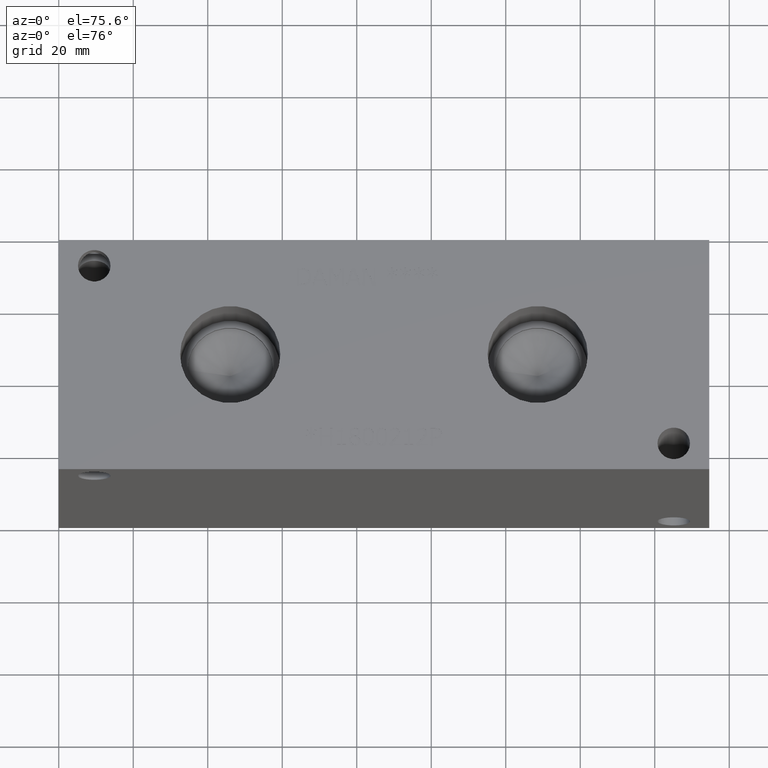
[diagram: clean part render]
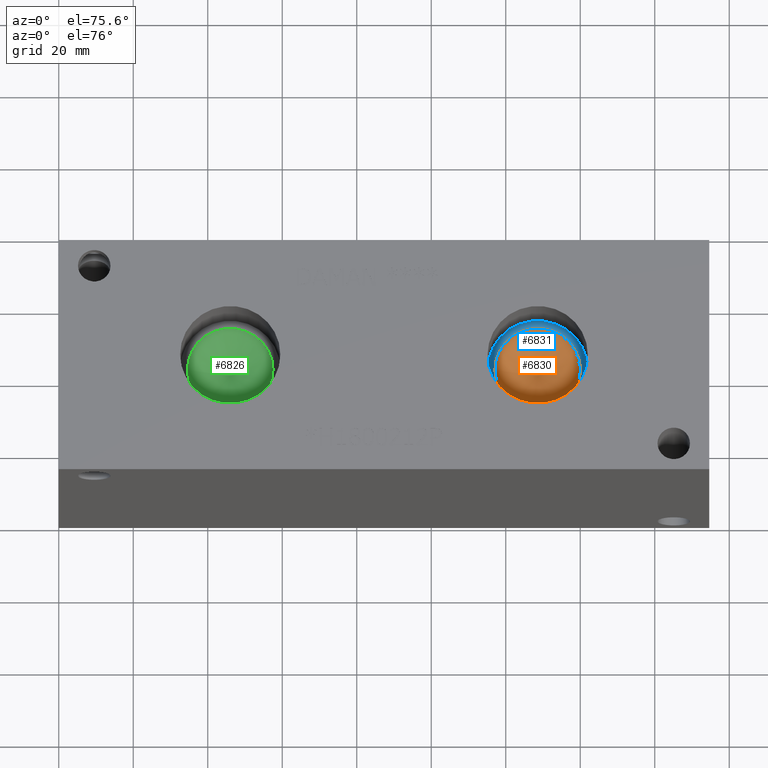
[diagram: same view with three faces highlighted in distinct colors, each labeled with its STEP entity id]
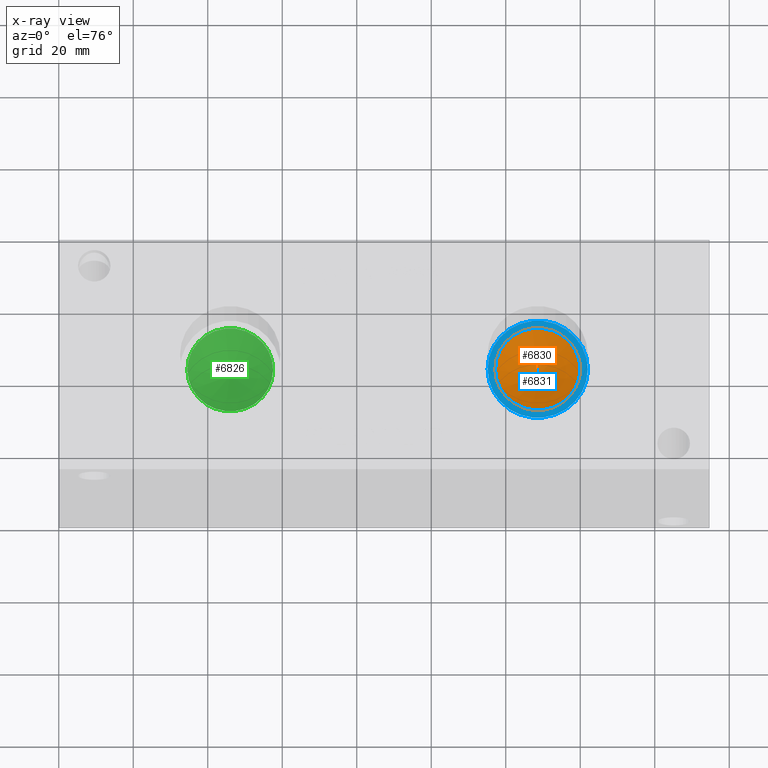
[diagram: x-ray of the same camera — body ghosted, the three highlighted faces saturated]
A machine part, auxiliary view with three faces highlighted in distinct colors.
The next image is the same camera in x-ray (body ghosted, the three faces saturated) — at least one of them is partly hidden behind the body in this view.
Their STEP definitions:

[orange] entity #6830 — the highlighted conical surface has half-angle 60 deg.
#45=CONICAL_SURFACE('',#7147,5.7531,1.0471975511966);
#83=CIRCLE('',#7148,11.5062);
#84=CIRCLE('',#7149,11.5062);
#708=FACE_OUTER_BOUND('',#1085,.T.);
#1085=EDGE_LOOP('',(#6031,#6032,#6033,#6034));
#1805=LINE('',#11446,#2511);
#2511=VECTOR('',#8449,5.7531);
#3296=VERTEX_POINT('',#11442);
#3297=VERTEX_POINT('',#11443);
#3298=VERTEX_POINT('',#11445);
#4220=EDGE_CURVE('',#3296,#3297,#83,.T.);
#4221=EDGE_CURVE('',#3297,#3298,#1805,.T.);
#4222=EDGE_CURVE('',#3297,#3296,#84,.T.);
#6031=ORIENTED_EDGE('',*,*,#4220,.T.);
#6032=ORIENTED_EDGE('',*,*,#4221,.T.);
#6033=ORIENTED_EDGE('',*,*,#4221,.F.);
#6034=ORIENTED_EDGE('',*,*,#4222,.T.);
#6830=ADVANCED_FACE('',(#708),#45,.F.);
#7147=AXIS2_PLACEMENT_3D('',#11441,#8445,#8446);
#7148=AXIS2_PLACEMENT_3D('',#11444,#8447,#8448);
#7149=AXIS2_PLACEMENT_3D('',#11447,#8450,#8451);
#8445=DIRECTION('center_axis',(0.,0.,1.));
#8446=DIRECTION('ref_axis',(1.,0.,0.));
#8447=DIRECTION('center_axis',(0.,0.,1.));
#8448=DIRECTION('ref_axis',(1.,0.,0.));
#8449=DIRECTION('',(0.866025403784439,1.06057523872491E-16,-0.5));
#8450=DIRECTION('center_axis',(0.,0.,1.));
#8451=DIRECTION('ref_axis',(1.,0.,0.));
#11441=CARTESIAN_POINT('Origin',(128.5748,31.75,43.6645361663252));
#11442=CARTESIAN_POINT('',(140.081,31.75,46.98609));
#11443=CARTESIAN_POINT('',(117.0686,31.75,46.98609));
#11444=CARTESIAN_POINT('Origin',(128.5748,31.75,46.98609));
#11445=CARTESIAN_POINT('',(128.5748,31.75,40.3429823326503));
#11446=CARTESIAN_POINT('',(122.8217,31.75,43.6645361663252));
#11447=CARTESIAN_POINT('Origin',(128.5748,31.75,46.98609));

[blue] entity #6831 — the highlighted planar face has unit normal (0, 0, 1).
#85=CIRCLE('',#7151,13.462);
#86=CIRCLE('',#7152,13.462);
#87=CIRCLE('',#7153,11.5062);
#136=FACE_BOUND('',#1087,.T.);
#374=PLANE('',#7150);
#709=FACE_OUTER_BOUND('',#1086,.T.);
#1086=EDGE_LOOP('',(#6035,#6036));
#1087=EDGE_LOOP('',(#6037));
#3299=VERTEX_POINT('',#11449);
#3300=VERTEX_POINT('',#11450);
#3301=VERTEX_POINT('',#11453);
#4223=EDGE_CURVE('',#3299,#3300,#85,.T.);
#4224=EDGE_CURVE('',#3300,#3299,#86,.T.);
#4225=EDGE_CURVE('',#3301,#3301,#87,.T.);
#6035=ORIENTED_EDGE('',*,*,#4223,.T.);
#6036=ORIENTED_EDGE('',*,*,#4224,.T.);
#6037=ORIENTED_EDGE('',*,*,#4225,.F.);
#6831=ADVANCED_FACE('',(#709,#136),#374,.T.);
#7150=AXIS2_PLACEMENT_3D('',#11448,#8452,#8453);
#7151=AXIS2_PLACEMENT_3D('',#11451,#8454,#8455);
#7152=AXIS2_PLACEMENT_3D('',#11452,#8456,#8457);
#7153=AXIS2_PLACEMENT_3D('',#11454,#8458,#8459);
#8452=DIRECTION('center_axis',(0.,0.,1.));
#8453=DIRECTION('ref_axis',(1.,0.,0.));
#8454=DIRECTION('center_axis',(0.,0.,1.));
#8455=DIRECTION('ref_axis',(1.,0.,0.));
#8456=DIRECTION('center_axis',(0.,0.,1.));
#8457=DIRECTION('ref_axis',(1.,0.,0.));
#8458=DIRECTION('center_axis',(0.,0.,1.));
#8459=DIRECTION('ref_axis',(1.,0.,0.));
#11448=CARTESIAN_POINT('Origin',(128.5748,31.75,47.6504));
#11449=CARTESIAN_POINT('',(142.0368,31.75,47.6504));
#11450=CARTESIAN_POINT('',(115.1128,31.75,47.6504));
#11451=CARTESIAN_POINT('Origin',(128.5748,31.75,47.6504));
#11452=CARTESIAN_POINT('Origin',(128.5748,31.75,47.6504));
#11453=CARTESIAN_POINT('',(117.0686,31.75,47.6504));
#11454=CARTESIAN_POINT('Origin',(128.5748,31.75,47.6504));

[green] entity #6826 — the highlighted conical surface has half-angle 60 deg.
#44=CONICAL_SURFACE('',#7138,5.7531,1.0471975511966);
#78=CIRCLE('',#7139,11.5062);
#79=CIRCLE('',#7140,11.5062);
#704=FACE_OUTER_BOUND('',#1080,.T.);
#1080=EDGE_LOOP('',(#6013,#6014,#6015,#6016));
#1802=LINE('',#11428,#2508);
#2508=VECTOR('',#8428,5.7531);
#3290=VERTEX_POINT('',#11424);
#3291=VERTEX_POINT('',#11425);
#3292=VERTEX_POINT('',#11427);
#4212=EDGE_CURVE('',#3290,#3291,#78,.T.);
#4213=EDGE_CURVE('',#3291,#3292,#1802,.T.);
#4214=EDGE_CURVE('',#3291,#3290,#79,.T.);
#6013=ORIENTED_EDGE('',*,*,#4212,.T.);
#6014=ORIENTED_EDGE('',*,*,#4213,.T.);
#6015=ORIENTED_EDGE('',*,*,#4213,.F.);
#6016=ORIENTED_EDGE('',*,*,#4214,.T.);
#6826=ADVANCED_FACE('',(#704),#44,.F.);
#7138=AXIS2_PLACEMENT_3D('',#11423,#8424,#8425);
#7139=AXIS2_PLACEMENT_3D('',#11426,#8426,#8427);
#7140=AXIS2_PLACEMENT_3D('',#11429,#8429,#8430);
#8424=DIRECTION('center_axis',(0.,0.,1.));
#8425=DIRECTION('ref_axis',(1.,0.,0.));
#8426=DIRECTION('center_axis',(0.,0.,1.));
#8427=DIRECTION('ref_axis',(1.,0.,0.));
#8428=DIRECTION('',(0.866025403784439,1.06057523872491E-16,-0.5));
#8429=DIRECTION('center_axis',(0.,0.,1.));
#8430=DIRECTION('ref_axis',(1.,0.,0.));
#11423=CARTESIAN_POINT('Origin',(46.0248,31.75,43.6645361663252));
#11424=CARTESIAN_POINT('',(57.531,31.75,46.98609));
#11425=CARTESIAN_POINT('',(34.5186,31.75,46.98609));
#11426=CARTESIAN_POINT('Origin',(46.0248,31.75,46.98609));
#11427=CARTESIAN_POINT('',(46.0248,31.75,40.3429823326503));
#11428=CARTESIAN_POINT('',(40.2717,31.75,43.6645361663252));
#11429=CARTESIAN_POINT('Origin',(46.0248,31.75,46.98609));